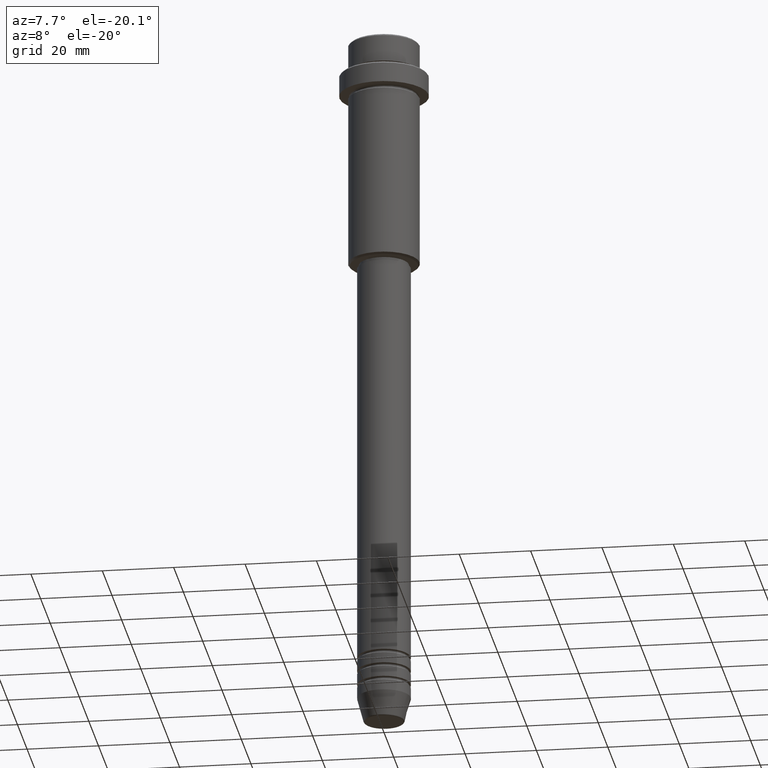
[diagram: clean part render]
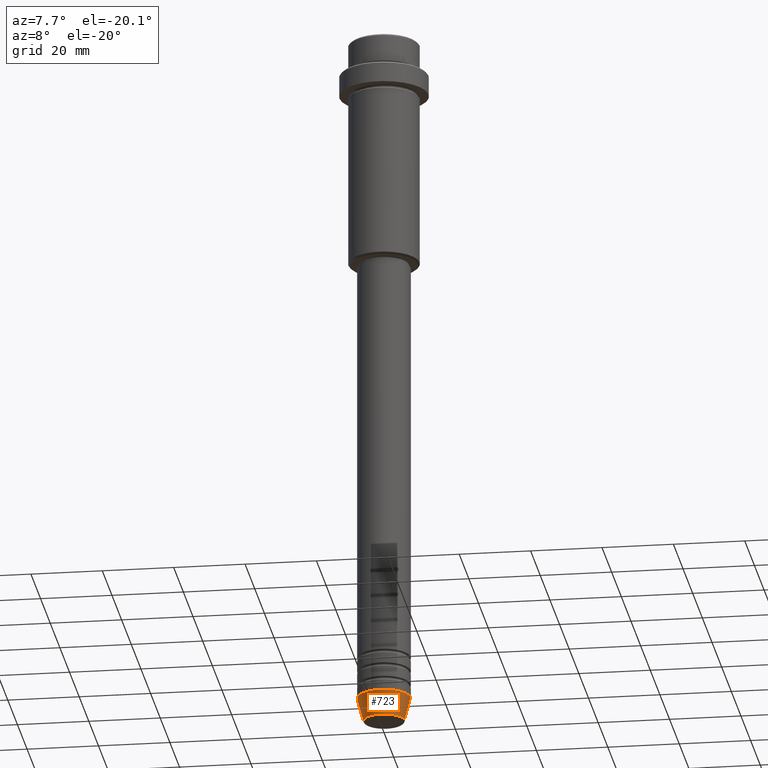
[diagram: same view with one face highlighted and labeled with its STEP entity id]
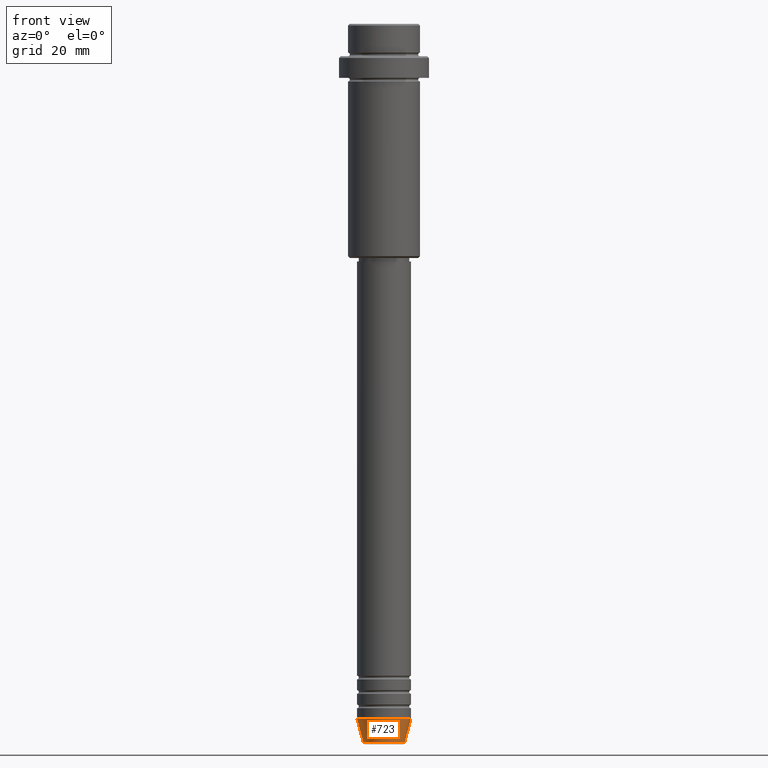
[diagram: same view with one face highlighted and labeled with its STEP entity id]
A machine part, auxiliary view. The second image highlights one B-rep face of the part: STEP entity #723.
A second angle (front view) of the same face is appended — the face is thin or edge-on in the first view.
In plain terms, the highlighted conical surface has half-angle 15 deg.
Its self-contained STEP definition (entity closure, byte-faithful):
#81 = ORIENTED_EDGE ( 'NONE', *, *, #915, .T. ) ;
#116 = DIRECTION ( 'NONE',  ( -0.000000000000000000, -0.000000000000000000, 1.000000000000000000 ) ) ;
#179 = CARTESIAN_POINT ( 'NONE',  ( -5.723655072137191269, 8.097153428560735915E-16, -199.6294095225512706 ) ) ;
#197 = ORIENTED_EDGE ( 'NONE', *, *, #259, .F. ) ;
#225 = CARTESIAN_POINT ( 'NONE',  ( 7.500000000000000000, 0.000000000000000000, -193.0000000000000000 ) ) ;
#250 = CARTESIAN_POINT ( 'NONE',  ( 5.723655072137191269, 0.000000000000000000, -199.6294095225512706 ) ) ;
#255 = DIRECTION ( 'NONE',  ( -0.000000000000000000, -0.000000000000000000, 1.000000000000000000 ) ) ;
#259 = EDGE_CURVE ( 'NONE', #1060, #438, #1387, .T. ) ;
#288 = CIRCLE ( 'NONE', #604, 7.500000000000000000 ) ;
#376 = ORIENTED_EDGE ( 'NONE', *, *, #932, .F. ) ;
#438 = VERTEX_POINT ( 'NONE', #654 ) ;
#502 = FACE_OUTER_BOUND ( 'NONE', #1414, .T. ) ;
#551 = DIRECTION ( 'NONE',  ( 0.2588190451025213501, 0.000000000000000000, 0.9659258262890680902 ) ) ;
#560 = DIRECTION ( 'NONE',  ( 1.000000000000000000, 0.000000000000000000, 0.000000000000000000 ) ) ;
#582 = DIRECTION ( 'NONE',  ( 1.000000000000000000, 0.000000000000000000, 0.000000000000000000 ) ) ;
#604 = AXIS2_PLACEMENT_3D ( 'NONE', #1097, #116, #582 ) ;
#626 = DIRECTION ( 'NONE',  ( -0.2588190451025213501, 3.169619151431772337E-17, 0.9659258262890680902 ) ) ;
#653 = AXIS2_PLACEMENT_3D ( 'NONE', #1221, #255, #560 ) ;
#654 = CARTESIAN_POINT ( 'NONE',  ( -7.500000000000000000, 9.184850993605147944E-16, -193.0000000000000000 ) ) ;
#703 = DIRECTION ( 'NONE',  ( 1.000000000000000000, 0.000000000000000000, 0.000000000000000000 ) ) ;
#723 = ADVANCED_FACE ( 'NONE', ( #502 ), #902, .T. ) ;
#781 = AXIS2_PLACEMENT_3D ( 'NONE', #1254, #1145, #703 ) ;
#854 = VECTOR ( 'NONE', #626, 1000.000000000000000 ) ;
#902 = CONICAL_SURFACE ( 'NONE', #781, 7.500000000000000000, 0.2617993877991500740 ) ;
#915 = EDGE_CURVE ( 'NONE', #1035, #1307, #1205, .T. ) ;
#932 = EDGE_CURVE ( 'NONE', #438, #1307, #288, .T. ) ;
#986 = EDGE_CURVE ( 'NONE', #1060, #1035, #1153, .T. ) ;
#987 = ORIENTED_EDGE ( 'NONE', *, *, #986, .T. ) ;
#1035 = VERTEX_POINT ( 'NONE', #250 ) ;
#1060 = VERTEX_POINT ( 'NONE', #179 ) ;
#1097 = CARTESIAN_POINT ( 'NONE',  ( 0.000000000000000000, 0.000000000000000000, -193.0000000000000000 ) ) ;
#1145 = DIRECTION ( 'NONE',  ( -0.000000000000000000, -0.000000000000000000, 1.000000000000000000 ) ) ;
#1146 = CARTESIAN_POINT ( 'NONE',  ( -7.500000000000000000, 9.184850993605147944E-16, -193.0000000000000000 ) ) ;
#1153 = CIRCLE ( 'NONE', #653, 5.723655072137191269 ) ;
#1205 = LINE ( 'NONE', #225, #1219 ) ;
#1219 = VECTOR ( 'NONE', #551, 1000.000000000000000 ) ;
#1221 = CARTESIAN_POINT ( 'NONE',  ( 0.000000000000000000, 0.000000000000000000, -199.6294095225512706 ) ) ;
#1254 = CARTESIAN_POINT ( 'NONE',  ( 0.000000000000000000, 0.000000000000000000, -193.0000000000000000 ) ) ;
#1307 = VERTEX_POINT ( 'NONE', #1394 ) ;
#1387 = LINE ( 'NONE', #1146, #854 ) ;
#1394 = CARTESIAN_POINT ( 'NONE',  ( 7.500000000000000000, 0.000000000000000000, -193.0000000000000000 ) ) ;
#1414 = EDGE_LOOP ( 'NONE', ( #197, #987, #81, #376 ) ) ;